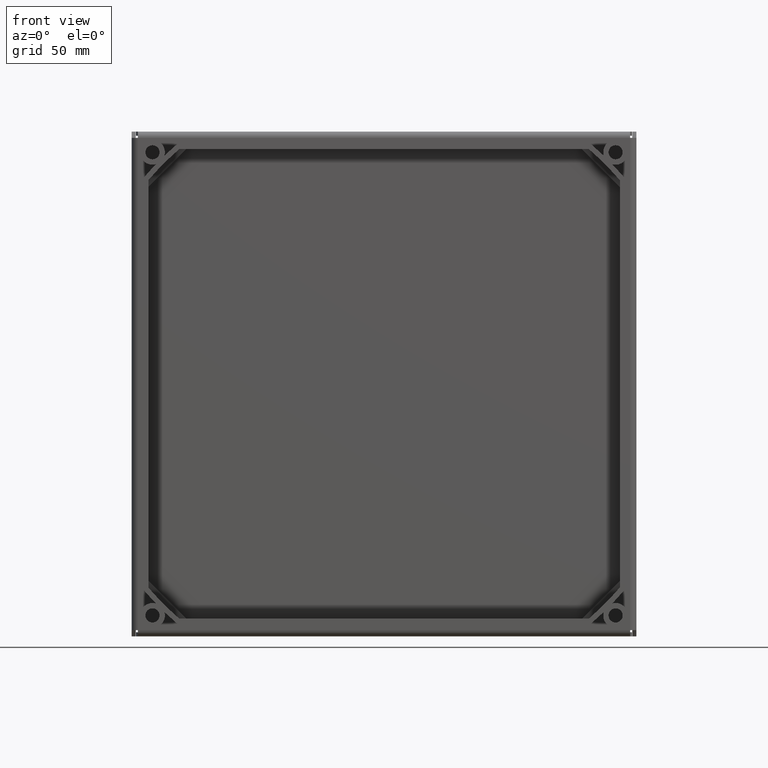
[diagram: clean part render]
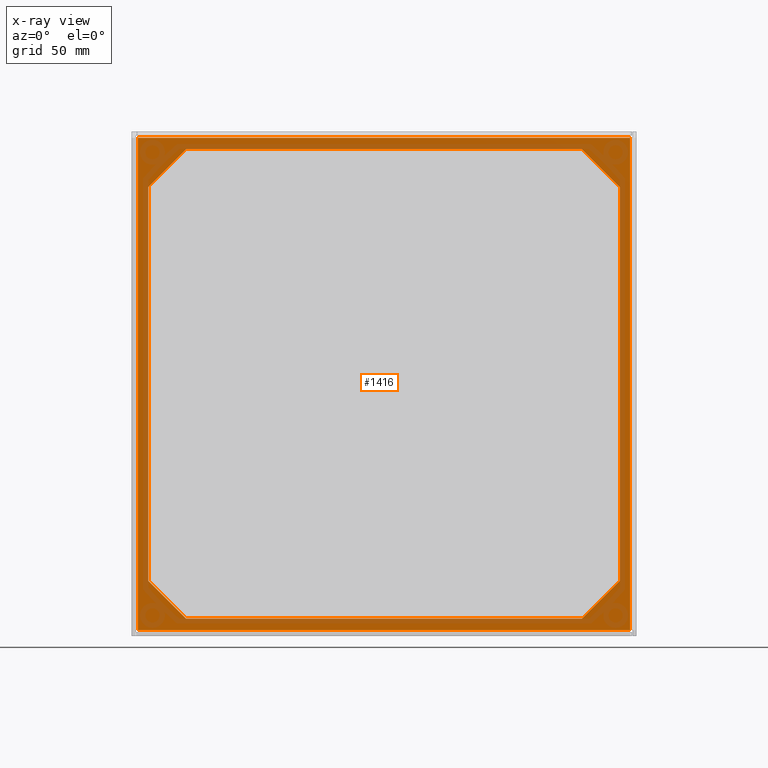
[diagram: x-ray — body ghosted, one internal face saturated and labeled with its STEP entity id]
A machine part, front view, then the same camera in x-ray: the body is ghosted and one INTERNAL B-rep face — a face not visible from any outside direction — is saturated and labeled: STEP entity #1416.
In plain terms, the highlighted planar face has unit normal (0, 1, 0).
Its self-contained STEP definition (entity closure, byte-faithful):
#365=DIRECTION('',(1.E0,0.E0,0.E0));
#366=VECTOR('',#365,2.37E2);
#367=CARTESIAN_POINT('',(-1.185E2,2.E0,1.185E2));
#368=LINE('',#367,#366);
#379=DIRECTION('',(1.E0,0.E0,0.E0));
#380=VECTOR('',#379,1.907035354437E2);
#381=CARTESIAN_POINT('',(-9.535176772185E1,2.E0,1.13E2));
#382=LINE('',#381,#380);
#386=DIRECTION('',(7.071067811865E-1,0.E0,-7.071067811865E-1));
#387=VECTOR('',#386,2.566547622084E1);
#388=CARTESIAN_POINT('',(9.535176772185E1,2.E0,1.13E2));
#389=LINE('',#388,#387);
#393=DIRECTION('',(-7.071067811865E-1,0.E0,-7.071067811865E-1));
#394=VECTOR('',#393,2.566547622084E1);
#395=CARTESIAN_POINT('',(1.135E2,2.E0,-9.485176772185E1));
#396=LINE('',#395,#394);
#400=DIRECTION('',(-1.E0,0.E0,0.E0));
#401=VECTOR('',#400,1.907035354437E2);
#402=CARTESIAN_POINT('',(9.535176772185E1,2.E0,-1.13E2));
#403=LINE('',#402,#401);
#407=DIRECTION('',(-7.071067811865E-1,0.E0,7.071067811865E-1));
#408=VECTOR('',#407,2.566547622084E1);
#409=CARTESIAN_POINT('',(-9.535176772185E1,2.E0,-1.13E2));
#410=LINE('',#409,#408);
#414=DIRECTION('',(0.E0,0.E0,1.E0));
#415=VECTOR('',#414,1.897035354437E2);
#416=CARTESIAN_POINT('',(-1.135E2,2.E0,-9.485176772185E1));
#417=LINE('',#416,#415);
#421=DIRECTION('',(7.071067811865E-1,0.E0,7.071067811865E-1));
#422=VECTOR('',#421,2.566547622084E1);
#423=CARTESIAN_POINT('',(-1.135E2,2.E0,9.485176772185E1));
#424=LINE('',#423,#422);
#435=DIRECTION('',(-1.E0,0.E0,0.E0));
#436=VECTOR('',#435,2.37E2);
#437=CARTESIAN_POINT('',(1.185E2,2.E0,-1.185E2));
#438=LINE('',#437,#436);
#642=DIRECTION('',(0.E0,0.E0,-1.E0));
#643=VECTOR('',#642,2.37E2);
#644=CARTESIAN_POINT('',(1.185E2,2.E0,1.185E2));
#645=LINE('',#644,#643);
#853=DIRECTION('',(0.E0,0.E0,1.E0));
#854=VECTOR('',#853,2.37E2);
#855=CARTESIAN_POINT('',(-1.185E2,2.E0,-1.185E2));
#856=LINE('',#855,#854);
#1074=DIRECTION('',(0.E0,0.E0,1.E0));
#1075=VECTOR('',#1074,1.897035354437E2);
#1076=CARTESIAN_POINT('',(1.135E2,2.E0,-9.485176772185E1));
#1077=LINE('',#1076,#1075);
#1171=CARTESIAN_POINT('',(-1.185E2,2.E0,1.185E2));
#1172=CARTESIAN_POINT('',(1.185E2,2.E0,1.185E2));
#1173=VERTEX_POINT('',#1171);
#1174=VERTEX_POINT('',#1172);
#1175=CARTESIAN_POINT('',(1.185E2,2.E0,-1.185E2));
#1176=CARTESIAN_POINT('',(-1.185E2,2.E0,-1.185E2));
#1177=VERTEX_POINT('',#1175);
#1178=VERTEX_POINT('',#1176);
#1179=CARTESIAN_POINT('',(-9.535176772185E1,2.E0,1.13E2));
#1180=CARTESIAN_POINT('',(9.535176772185E1,2.E0,1.13E2));
#1181=VERTEX_POINT('',#1179);
#1182=VERTEX_POINT('',#1180);
#1183=CARTESIAN_POINT('',(1.135E2,2.E0,9.485176772185E1));
#1184=VERTEX_POINT('',#1183);
#1185=CARTESIAN_POINT('',(1.135E2,2.E0,-9.485176772185E1));
#1186=VERTEX_POINT('',#1185);
#1187=CARTESIAN_POINT('',(9.535176772185E1,2.E0,-1.13E2));
#1188=VERTEX_POINT('',#1187);
#1189=CARTESIAN_POINT('',(-9.535176772185E1,2.E0,-1.13E2));
#1190=VERTEX_POINT('',#1189);
#1191=CARTESIAN_POINT('',(-1.135E2,2.E0,-9.485176772185E1));
#1192=VERTEX_POINT('',#1191);
#1193=CARTESIAN_POINT('',(-1.135E2,2.E0,9.485176772185E1));
#1194=VERTEX_POINT('',#1193);
#1384=CARTESIAN_POINT('',(0.E0,2.E0,0.E0));
#1385=DIRECTION('',(0.E0,1.E0,0.E0));
#1386=DIRECTION('',(1.E0,0.E0,0.E0));
#1387=AXIS2_PLACEMENT_3D('',#1384,#1385,#1386);
#1388=PLANE('',#1387);
#1390=ORIENTED_EDGE('',*,*,#1389,.F.);
#1392=ORIENTED_EDGE('',*,*,#1391,.F.);
#1393=ORIENTED_EDGE('',*,*,#1374,.F.);
#1395=ORIENTED_EDGE('',*,*,#1394,.F.);
#1396=EDGE_LOOP('',(#1390,#1392,#1393,#1395));
#1397=FACE_OUTER_BOUND('',#1396,.F.);
#1399=ORIENTED_EDGE('',*,*,#1398,.T.);
#1401=ORIENTED_EDGE('',*,*,#1400,.T.);
#1403=ORIENTED_EDGE('',*,*,#1402,.F.);
#1405=ORIENTED_EDGE('',*,*,#1404,.T.);
#1407=ORIENTED_EDGE('',*,*,#1406,.T.);
#1409=ORIENTED_EDGE('',*,*,#1408,.T.);
#1411=ORIENTED_EDGE('',*,*,#1410,.T.);
#1413=ORIENTED_EDGE('',*,*,#1412,.T.);
#1414=EDGE_LOOP('',(#1399,#1401,#1403,#1405,#1407,#1409,#1411,#1413));
#1415=FACE_BOUND('',#1414,.F.);
#1374=EDGE_CURVE('',#1173,#1174,#368,.T.);
#1389=EDGE_CURVE('',#1177,#1178,#438,.T.);
#1391=EDGE_CURVE('',#1174,#1177,#645,.T.);
#1394=EDGE_CURVE('',#1178,#1173,#856,.T.);
#1398=EDGE_CURVE('',#1181,#1182,#382,.T.);
#1400=EDGE_CURVE('',#1182,#1184,#389,.T.);
#1402=EDGE_CURVE('',#1186,#1184,#1077,.T.);
#1404=EDGE_CURVE('',#1186,#1188,#396,.T.);
#1406=EDGE_CURVE('',#1188,#1190,#403,.T.);
#1408=EDGE_CURVE('',#1190,#1192,#410,.T.);
#1410=EDGE_CURVE('',#1192,#1194,#417,.T.);
#1412=EDGE_CURVE('',#1194,#1181,#424,.T.);
#1416=ADVANCED_FACE('',(#1397,#1415),#1388,.T.);